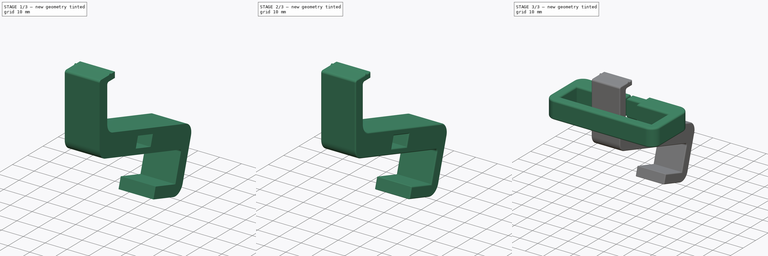
[diagram: build sequence overview — one tinted view per stage of 3, left to right]
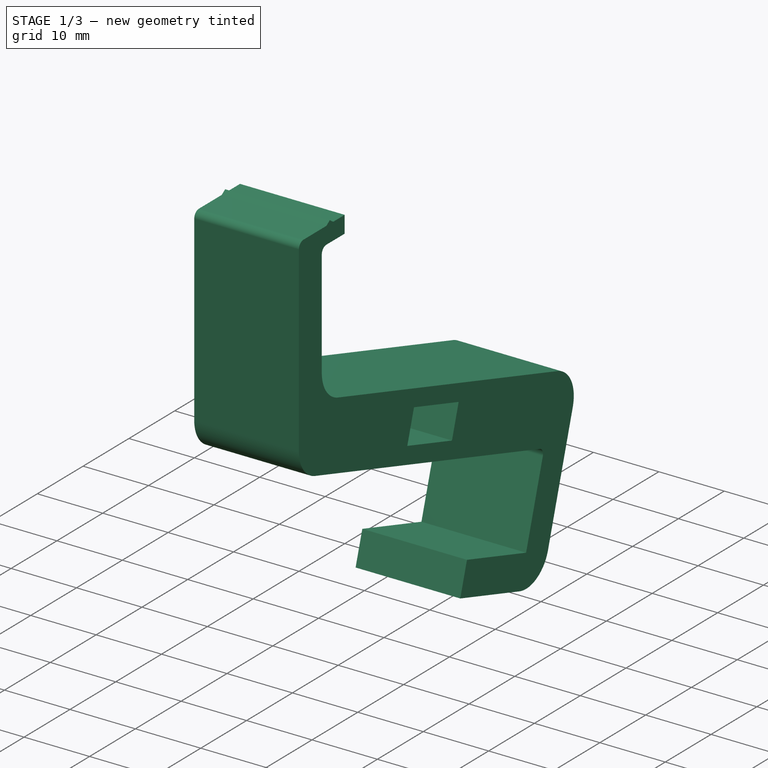
[diagram: stage 1 of 3 — iso view after this stage's code; geometry added in this stage tinted green]
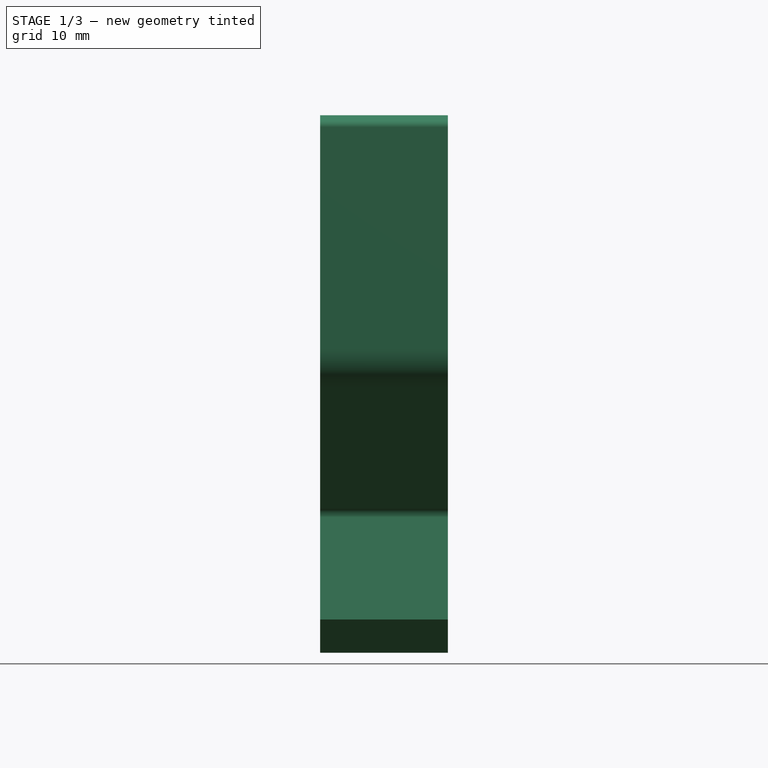
[diagram: stage 1 of 3 — front view after this stage's code; geometry added in this stage tinted green]
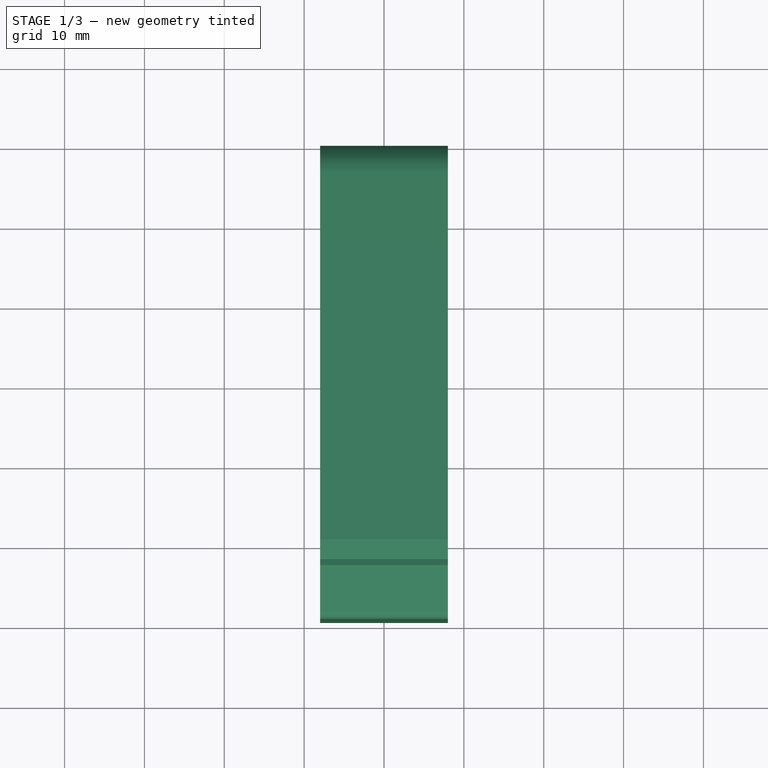
[diagram: stage 1 of 3 — top view after this stage's code; geometry added in this stage tinted green]
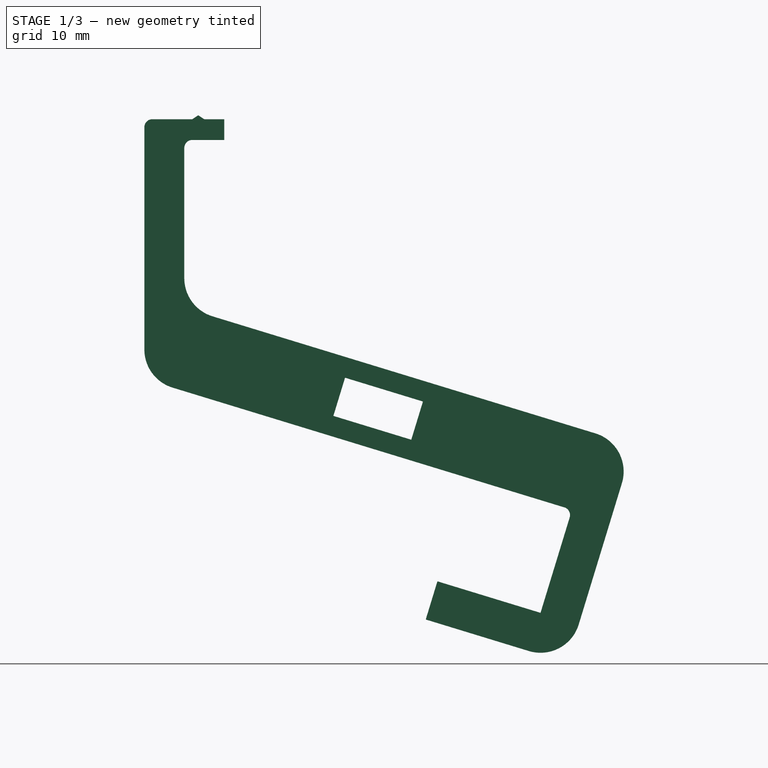
[diagram: stage 1 of 3 — right view after this stage's code; geometry added in this stage tinted green]
FCSTD DOCUMENT  (FreeCAD 0.22R36391 (Git))
Label: aawireless-tacoma-mount
License: All rights reserved
LicenseURL: http://en.wikipedia.org/wiki/All_rights_reserved
objects: PartDesign::Fillet×6, Sketcher::SketchObject×2, PartDesign::Pad×2, PartDesign::Body×2
note: 20 computed .brp shape members not serialized (recipe doc carries the construction recipe); baked Part::Feature solids carry a one-line shape summary decoded from their .brp

FEATURE [Sketcher::SketchObject] Sketch
  AttachmentSupport = -> [YZ_Plane]
  FullyConstrained = false
  MapMode = 5
  Placement = pos=(0,0,0) rot=(0.57735,0.57735,0.57735;2.0944rad)
  sketch-geometry (21):
    g0: LineSegment StartX=10 StartY=23.6 StartZ=0 EndX=7.5 EndY=23.6 EndZ=0
    g1: LineSegment StartX=0 StartY=23.6 StartZ=0 EndX=0 EndY=-8.92826 EndZ=0
    g2: LineSegment StartX=0 StartY=-8.92826 StartZ=0 EndX=53.5531 EndY=-25.3011 EndZ=0
    g3: LineSegment StartX=61.2583 StartY=-17.1999 StartZ=0 EndX=5 EndY=0 EndZ=0
    g4: LineSegment StartX=5 StartY=0 StartZ=0 EndX=5 EndY=21 EndZ=0
    g5: LineSegment StartX=5 StartY=21 StartZ=0 EndX=10 EndY=21 EndZ=0
    g6: LineSegment StartX=10 StartY=21 StartZ=0 EndX=10 EndY=23.6 EndZ=0
    g7: LineSegment StartX=5 StartY=0 StartZ=0 EndX=96.0477 EndY=0 EndZ=0
    g8: LineSegment StartX=6 StartY=23.6 StartZ=0 EndX=0 EndY=23.6 EndZ=0
    g9: LineSegment StartX=25.1303 StartY=-8.76868 StartZ=0 EndX=23.6684 EndY=-13.5502 EndZ=0
    g10: LineSegment StartX=23.6684 StartY=-13.5502 StartZ=0 EndX=33.4228 EndY=-16.5324 EndZ=0
    g11: LineSegment StartX=33.4228 StartY=-16.5324 StartZ=0 EndX=34.8846 EndY=-11.7509 EndZ=0
    g12: LineSegment StartX=34.8846 StartY=-11.7509 StartZ=0 EndX=25.1303 EndY=-8.76868 EndZ=0
    g13: GeomPoint X=29.2765 Y=-12.6505 Z=0
    g14: LineSegment StartX=61.2583 StartY=-17.1999 StartZ=0 EndX=52.9257 EndY=-44.4546 EndZ=0
    g15: LineSegment StartX=52.9257 StartY=-44.4546 StartZ=0 EndX=35.2341 EndY=-39.0457 EndZ=0
    g16: LineSegment StartX=35.2341 StartY=-39.0457 StartZ=0 EndX=36.6959 EndY=-34.2642 EndZ=0
    g17: LineSegment StartX=36.6959 StartY=-34.2642 StartZ=0 EndX=49.606 EndY=-38.2112 EndZ=0
    g18: LineSegment StartX=49.606 StartY=-38.2112 StartZ=0 EndX=53.5531 EndY=-25.3011 EndZ=0
    g19: LineSegment StartX=6 StartY=23.6 StartZ=0 EndX=6.75 EndY=24.1 EndZ=0
    g20: LineSegment StartX=6.75 StartY=24.1 StartZ=0 EndX=7.5 EndY=23.6 EndZ=0
  constraints (59):
    c: PointOnObject(g8,g-2)
    c: Horizontal(g0)
    c: Coincident(g8,g1)
    c: PointOnObject(g1,g-2)
    c: Coincident(g1,g2)
    c: Coincident(g3,g4)
    c: Vertical(g4)
    c: Coincident(g4,g5)
    c: Horizontal(g5)
    c: Coincident(g5,g6)
    c: Coincident(g6,g0)
    c: Vertical(g6)
    c: Distance(g5,g5) = 5
    c: Distance(g4,g1) = 5
    c: Distance(g6,g6) = 2.6
    c: Parallel(g2,g3)
    c: Horizontal(g7)
    c: DistanceY(g7,g4) = 21
    c: PointOnObject(g3,g-1)
    c: Angle(g-1,g3) = 2.84489
    c: Coincident(g7,g3)
    c: Distance(g8,g8) = 6
    c: Distance(g0,g0) = 2.5
    c: Horizontal(g8)
    c: Horizontal(g0,g8)
    c: Coincident(g9,g10)
    c: Coincident(g10,g11)
    c: Coincident(g11,g12)
    c: Coincident(g12,g9)
    c: Parallel(g11,g9)
    c: Parallel(g12,g3)
    c: Equal(g9,g11)
    c: Symmetric(g9,g11,g13)
    c: Distance(g2,g2) = 56
    c: Coincident(g3,g14)
    c: Coincident(g14,g15)
    c: Coincident(g15,g16)
    c: Coincident(g16,g17)
    c: Coincident(g17,g18)
    c: Coincident(g18,g2)
    c: Parallel(g16,g14)
    c: Parallel(g14,g18)
    c: Parallel(g18,g11)
    c: Parallel(g15,g17)
    c: Parallel(g17,g2)
    c: Distance(g2,g3) = 10
    c: Angle(g3,g14) = 1.5708
    c: Distance(g16,g16) = 5
    c: Distance(g17,g2) = 13.5
    c: Distance(g17,g17) = 13.5
    c: Distance(g14,g18) = 5
    c: Symmetric(g3,g2,g13)
    c: Distance(g11,g11) = 5
    c: Distance(g12,g12) = 10.2
    c: Coincident(g8,g19)
    c: Coincident(g19,g20)
    c: Coincident(g20,g0)
    c: DistanceY(g1,g19) = 0.5
    c: Equal(g19,g20)
FEATURE [PartDesign::Pad] Pad
  Direction = (1,0,0)
  Length = 8
  Length2 = 8
  Placement = pos=(0,0,0) rot=(0.57735,0.57735,0.57735;2.0944rad)
  Profile = -> Sketch
  ReferenceAxis = -> Sketch [N_Axis]
  Suppressed = false
  Type = 4
FEATURE [PartDesign::Body] Body001  label="Connector-Sleeve"
  Group = -> [Sketch001,Pad001,Fillet001,Fillet002]
  Origin = -> Origin001
  Tip = -> Fillet002
FEATURE [PartDesign::Fillet] Fillet
  Base = -> Pad [Edge1,Edge2,Edge41,Edge26]
  BaseFeature = -> Pad
  Placement = pos=(0,0,0) rot=(0.57735,0.57735,0.57735;2.0944rad)
  Radius = 5
  SupportTransform = false
  Suppressed = false
  UseAllEdges = false
FEATURE [PartDesign::Fillet] Fillet003
  Base = -> Fillet [Edge61,Edge64,Edge52]
  BaseFeature = -> Fillet
  Placement = pos=(0,0,0) rot=(0.57735,0.57735,0.57735;2.0944rad)
  Radius = 1
  SupportTransform = false
  Suppressed = false
  UseAllEdges = false
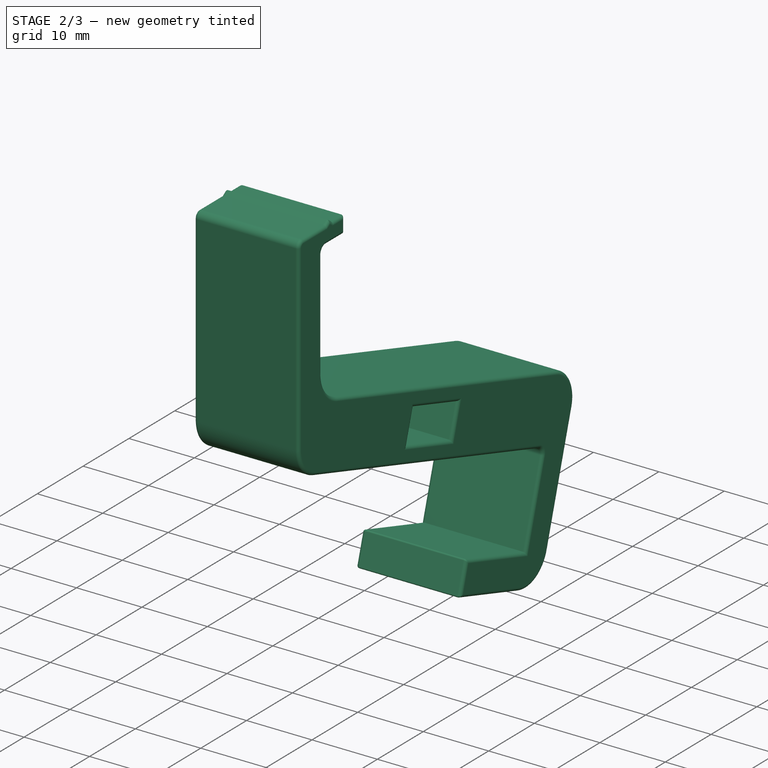
[diagram: stage 2 of 3 — iso view after this stage's code; geometry added in this stage tinted green]
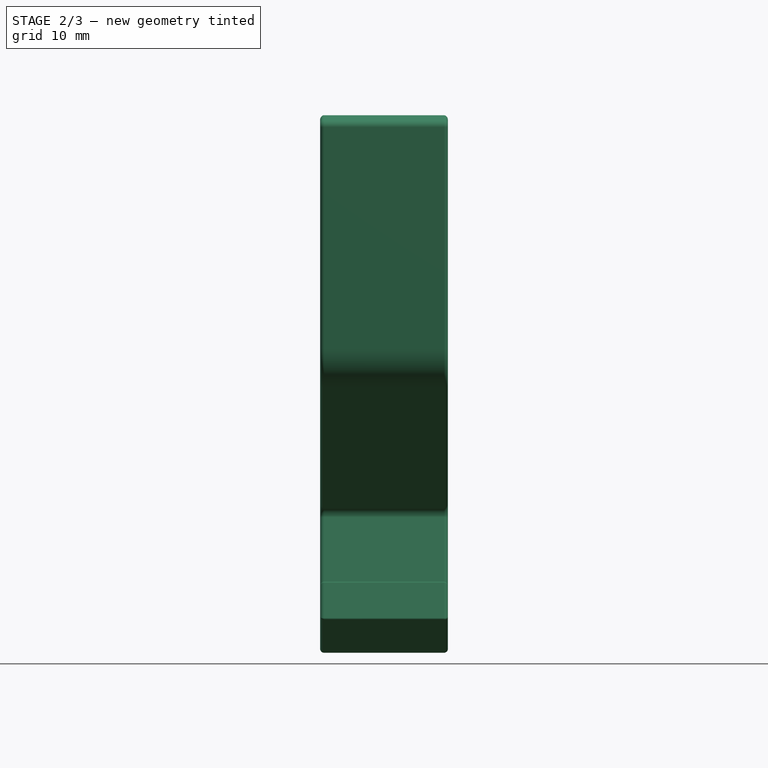
[diagram: stage 2 of 3 — front view after this stage's code; geometry added in this stage tinted green]
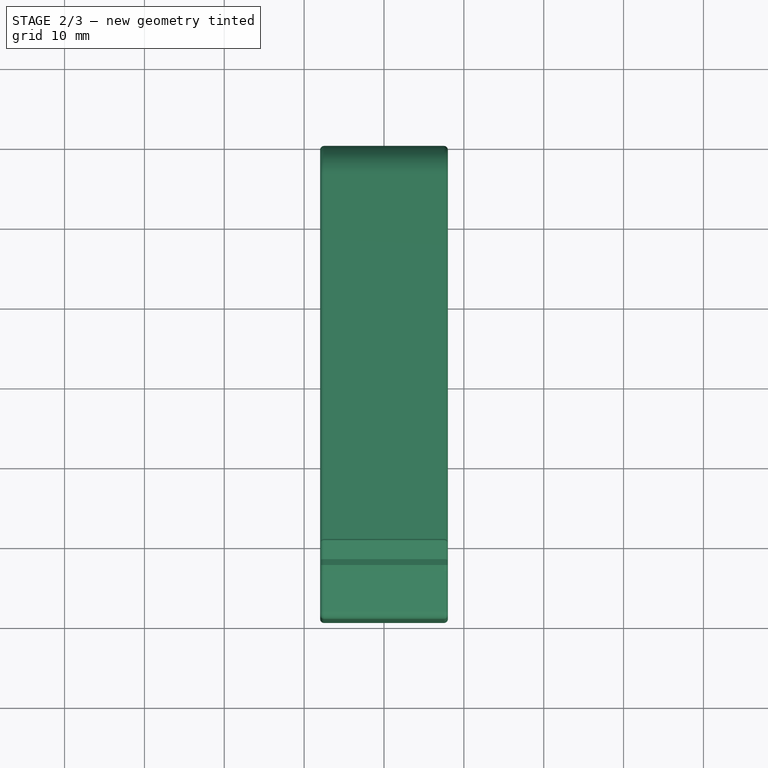
[diagram: stage 2 of 3 — top view after this stage's code; geometry added in this stage tinted green]
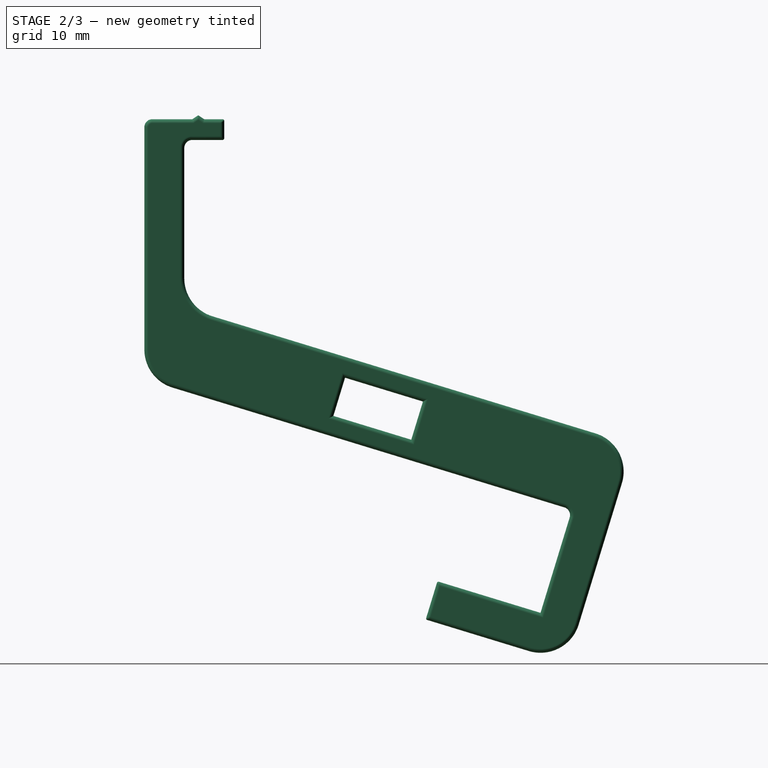
[diagram: stage 2 of 3 — right view after this stage's code; geometry added in this stage tinted green]
FEATURE [PartDesign::Fillet] Fillet004
  Base = -> Fillet003 [Face28,Face1]
  BaseFeature = -> Fillet003
  Placement = pos=(0,0,0) rot=(0.57735,0.57735,0.57735;2.0944rad)
  Radius = 0.5
  SupportTransform = false
  Suppressed = false
  UseAllEdges = false
FEATURE [PartDesign::Fillet] Fillet005
  Base = -> Fillet004 [Face29,Face46]
  BaseFeature = -> Fillet004
  Placement = pos=(0,0,0) rot=(0.57735,0.57735,0.57735;2.0944rad)
  Radius = 0.2
  SupportTransform = false
  Suppressed = false
  UseAllEdges = false
FEATURE [PartDesign::Body] Body  label="Main-Arm"
  Group = -> [Sketch,Pad,Fillet,Fillet003,Fillet004,Fillet005]
  Origin = -> Origin
  Tip = -> Fillet005
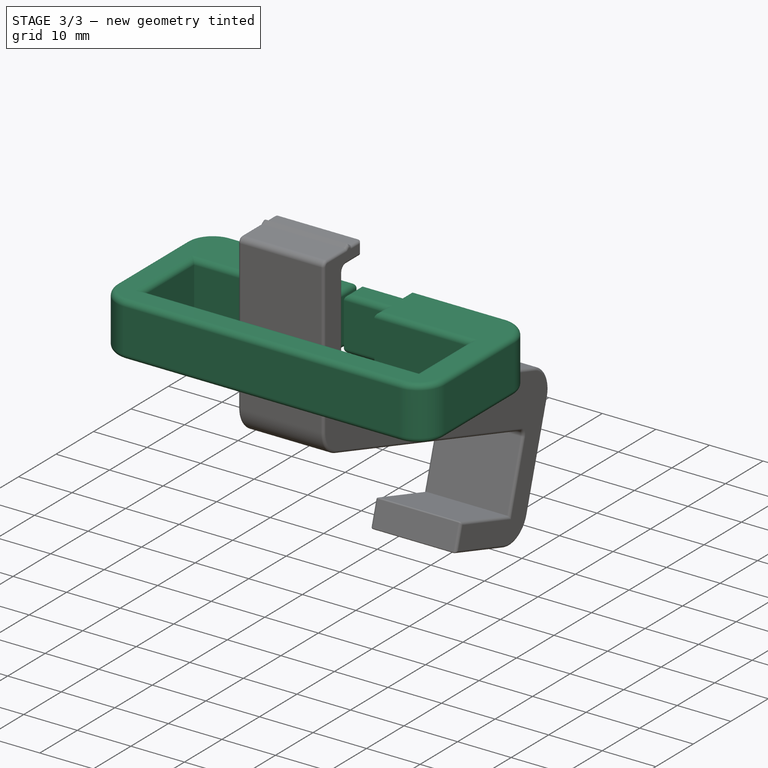
[diagram: stage 3 of 3 — iso view after this stage's code; geometry added in this stage tinted green]
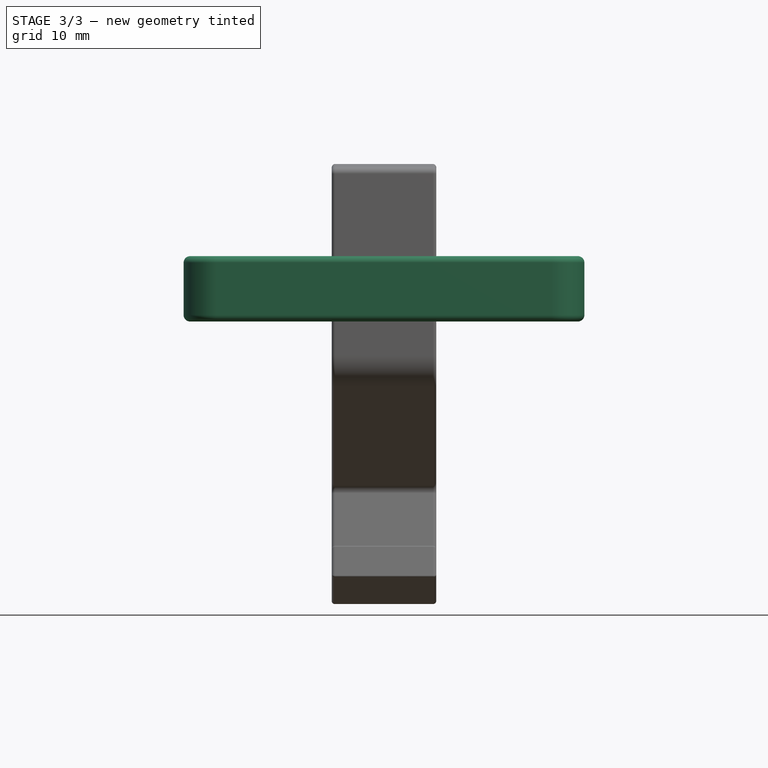
[diagram: stage 3 of 3 — front view after this stage's code; geometry added in this stage tinted green]
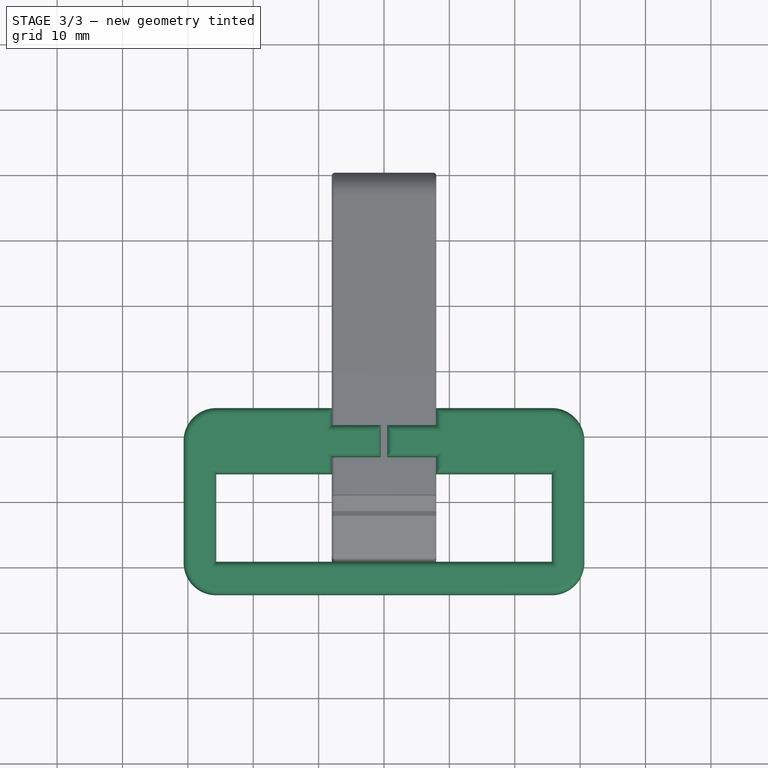
[diagram: stage 3 of 3 — top view after this stage's code; geometry added in this stage tinted green]
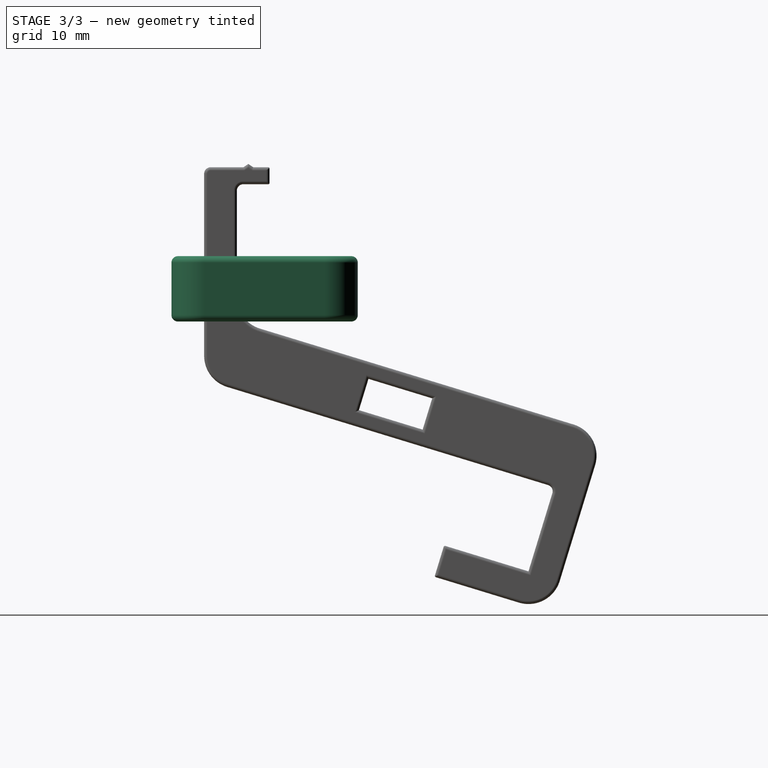
[diagram: stage 3 of 3 — right view after this stage's code; geometry added in this stage tinted green]
FEATURE [Sketcher::SketchObject] Sketch001
  AttachmentSupport = -> [XY_Plane001]
  FullyConstrained = true
  MapMode = 5
  sketch-geometry (21):
    g0: LineSegment StartX=-8 StartY=23.5 StartZ=0 EndX=-30.65 EndY=23.5 EndZ=0
    g1: LineSegment StartX=-30.65 StartY=23.5 StartZ=0 EndX=-30.65 EndY=-5 EndZ=0
    g2: LineSegment StartX=-30.65 StartY=-5 StartZ=0 EndX=30.65 EndY=-5 EndZ=0
    g3: LineSegment StartX=30.65 StartY=-5 StartZ=0 EndX=30.65 EndY=23.5 EndZ=0
    g4: LineSegment StartX=30.65 StartY=23.5 StartZ=0 EndX=8 EndY=23.5 EndZ=0
    g5: LineSegment StartX=8 StartY=23.5 StartZ=0 EndX=8 EndY=20.9 EndZ=0
    g6: LineSegment StartX=8 StartY=13.5 StartZ=0 EndX=25.65 EndY=13.5 EndZ=0
    g7: LineSegment StartX=25.65 StartY=13.5 StartZ=0 EndX=25.65 EndY=0 EndZ=0
    g8: LineSegment StartX=25.65 StartY=0 StartZ=0 EndX=-25.65 EndY=0 EndZ=0
    g9: LineSegment StartX=-25.65 StartY=0 StartZ=0 EndX=-25.65 EndY=13.5 EndZ=0
    g10: LineSegment StartX=-25.65 StartY=13.5 StartZ=0 EndX=-8 EndY=13.5 EndZ=0
    g11: LineSegment StartX=-8 StartY=13.5 StartZ=0 EndX=-8 EndY=16.1 EndZ=0
    g12: GeomPoint X=0 Y=-5 Z=0
    g13: LineSegment StartX=-8 StartY=20.9 StartZ=0 EndX=-0.5 EndY=20.9 EndZ=0
    g14: LineSegment StartX=-0.5 StartY=20.9 StartZ=0 EndX=-0.5 EndY=16.1 EndZ=0
    g15: LineSegment StartX=-0.5 StartY=16.1 StartZ=0 EndX=-8 EndY=16.1 EndZ=0
    g16: LineSegment StartX=8 StartY=20.9 StartZ=0 EndX=0.5 EndY=20.9 EndZ=0
    g17: LineSegment StartX=0.5 StartY=20.9 StartZ=0 EndX=0.5 EndY=16.1 EndZ=0
    g18: LineSegment StartX=0.5 StartY=16.1 StartZ=0 EndX=8 EndY=16.1 EndZ=0
    g19: LineSegment StartX=-8 StartY=20.9 StartZ=0 EndX=-8 EndY=23.5 EndZ=0
    g20: LineSegment StartX=8 StartY=16.1 StartZ=0 EndX=8 EndY=13.5 EndZ=0
  constraints (60):
    c: Horizontal(g0)
    c: Coincident(g0,g1)
    c: Vertical(g1)
    c: Coincident(g1,g2)
    c: Horizontal(g2)
    c: Coincident(g2,g3)
    c: Vertical(g3)
    c: Coincident(g3,g4)
    c: Horizontal(g4)
    c: Coincident(g4,g5)
    c: Vertical(g5)
    c: Coincident(g20,g6)
    c: Horizontal(g6)
    c: Coincident(g6,g7)
    c: Vertical(g7)
    c: Horizontal(g8)
    c: Coincident(g8,g9)
    c: Vertical(g9)
    c: Coincident(g9,g10)
    c: Horizontal(g10)
    c: Coincident(g10,g11)
    c: Coincident(g19,g0)
    c: Vertical(g11)
    c: Symmetric(g8,g7,g-1)
    c: Coincident(g7,g8)
    c: Equal(g9,g7)
    c: Equal(g4,g0)
    c: PointOnObject(g12,g-2)
    c: Symmetric(g1,g2,g12)
    c: DistanceY(g9,g9) = 13.5
    c: Horizontal(g13)
    c: Coincident(g13,g14)
    c: Vertical(g14)
    c: Coincident(g14,g15)
    c: Horizontal(g15)
    c: Horizontal(g16)
    c: Coincident(g16,g17)
    c: Vertical(g17)
    c: Coincident(g17,g18)
    c: Horizontal(g18)
    c: Coincident(g11,g15)
    c: Coincident(g19,g13)
    c: Coincident(g5,g16)
    c: Coincident(g20,g18)
    c: Equal(g17,g14)
    c: Equal(g13,g16)
    c: Vertical(g19)
    c: Vertical(g0,g10)
    c: Vertical(g4,g6)
    c: Vertical(g20)
    c: Horizontal(g13,g16)
    c: Distance(g10,g0) = 10
    c: Equal(g5,g19)
    c: Equal(g19,g11)
    c: Distance(g14,g14) = 4.8
    c: DistanceX(g13,g13) = 7.5
    c: Distance(g-2,g14) = 0.5
    c: Distance(g2,g8) = 5
    c: Distance(g1,g9) = 5
    c: DistanceX(g8,g8) = 51.3
FEATURE [PartDesign::Pad] Pad001
  Direction = (0,0,1)
  Length = 10
  Length2 = 10
  Profile = -> Sketch001
  ReferenceAxis = -> Sketch001 [N_Axis]
  Suppressed = false
  Type = 0
FEATURE [PartDesign::Fillet] Fillet001
  Base = -> Pad001 [Edge14,Edge11,Edge8,Edge5]
  BaseFeature = -> Pad001
  Radius = 5
  SupportTransform = false
  Suppressed = false
  UseAllEdges = false
FEATURE [PartDesign::Fillet] Fillet002
  Base = -> Fillet001 [Face5,Face2]
  BaseFeature = -> Fillet001
  Radius = 1
  SupportTransform = false
  Suppressed = false
  UseAllEdges = false
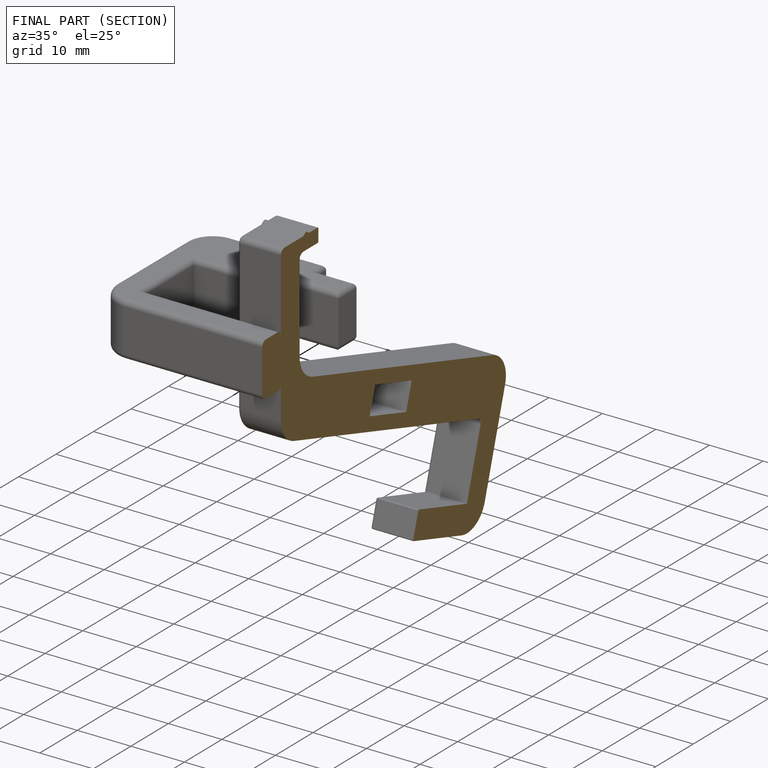
[diagram: finished part — half-section view (interior)]
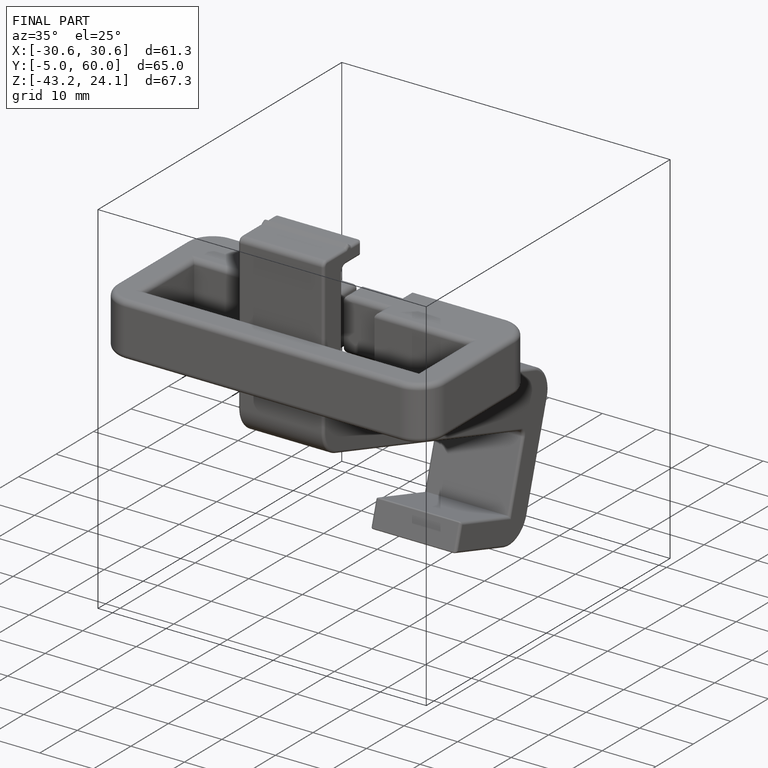
[diagram: finished part — iso view with bounding-box wireframe]
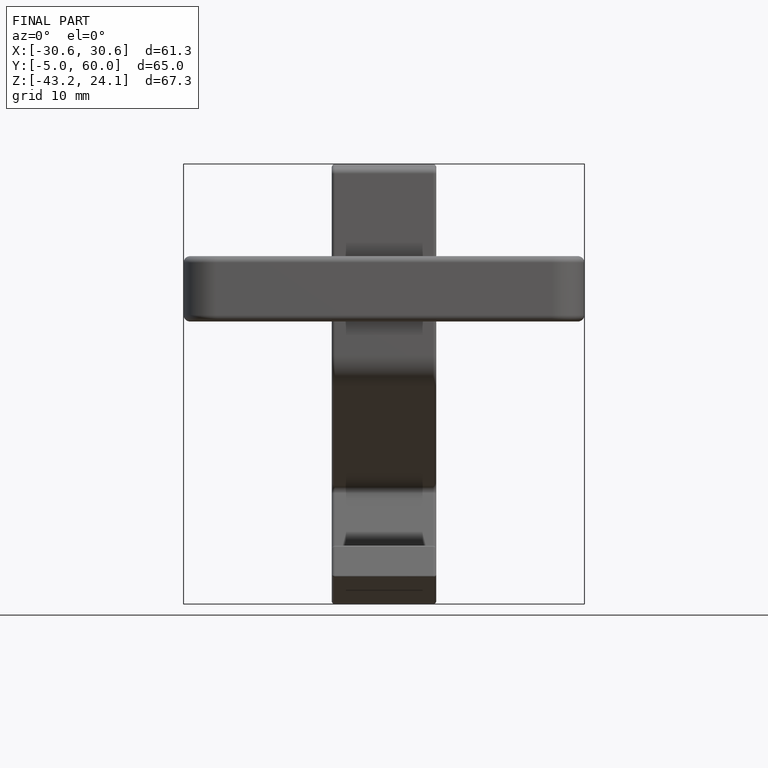
[diagram: finished part — front view with bounding-box wireframe]
